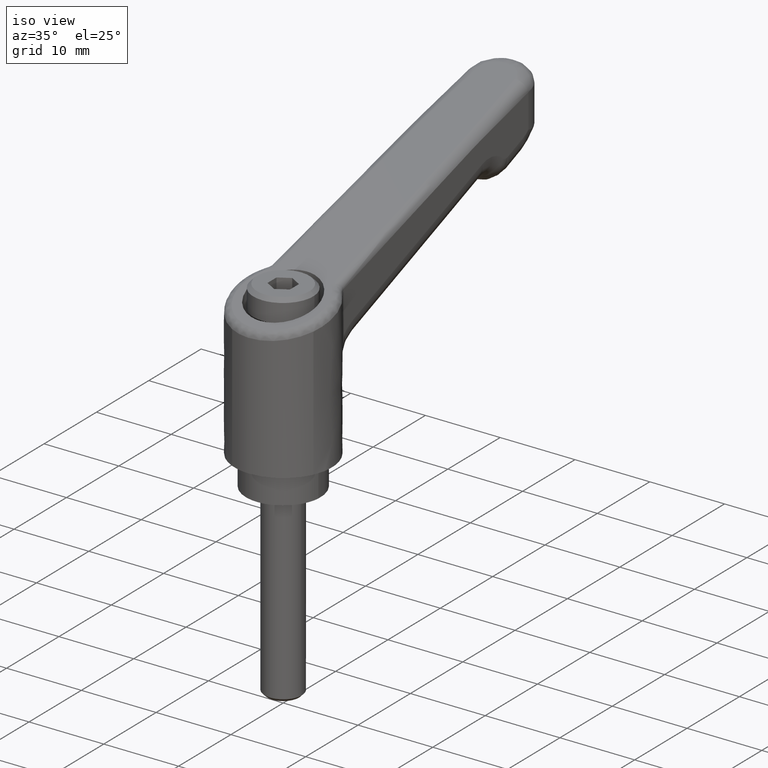
[diagram: clean part render]
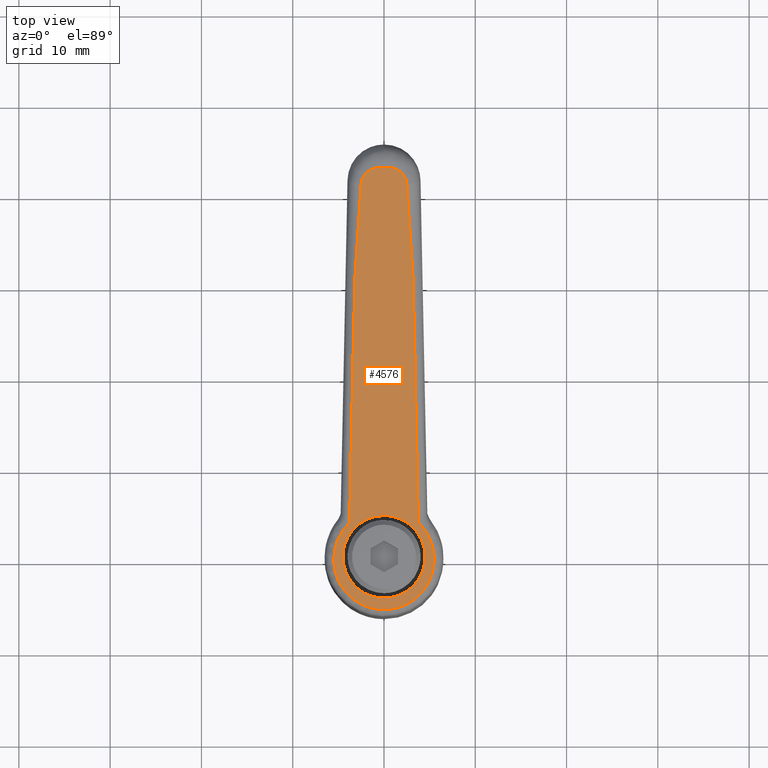
[diagram: tour spotlight — one face highlighted and labeled with its STEP entity id]
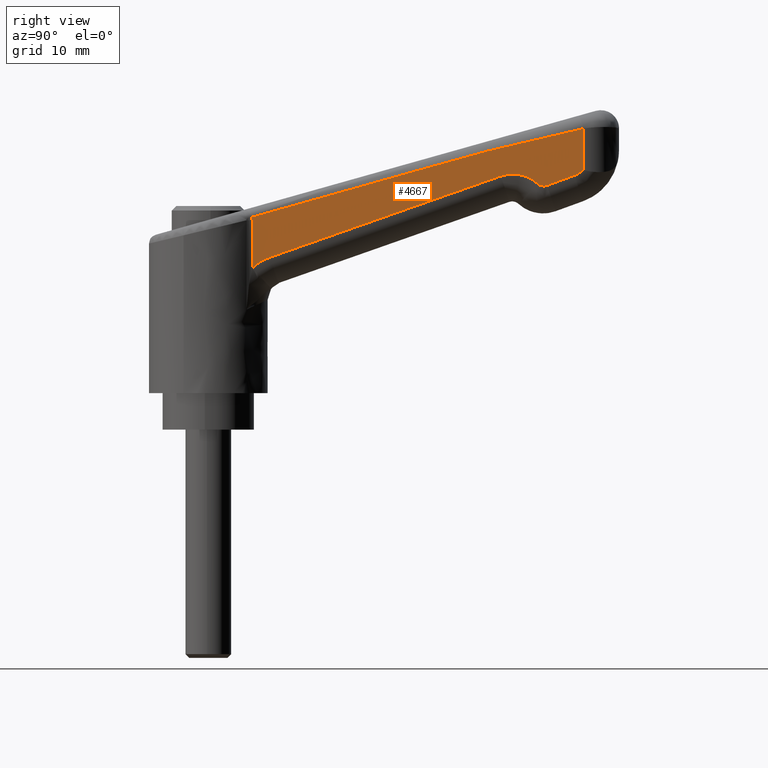
[diagram: tour spotlight — one face highlighted and labeled with its STEP entity id]
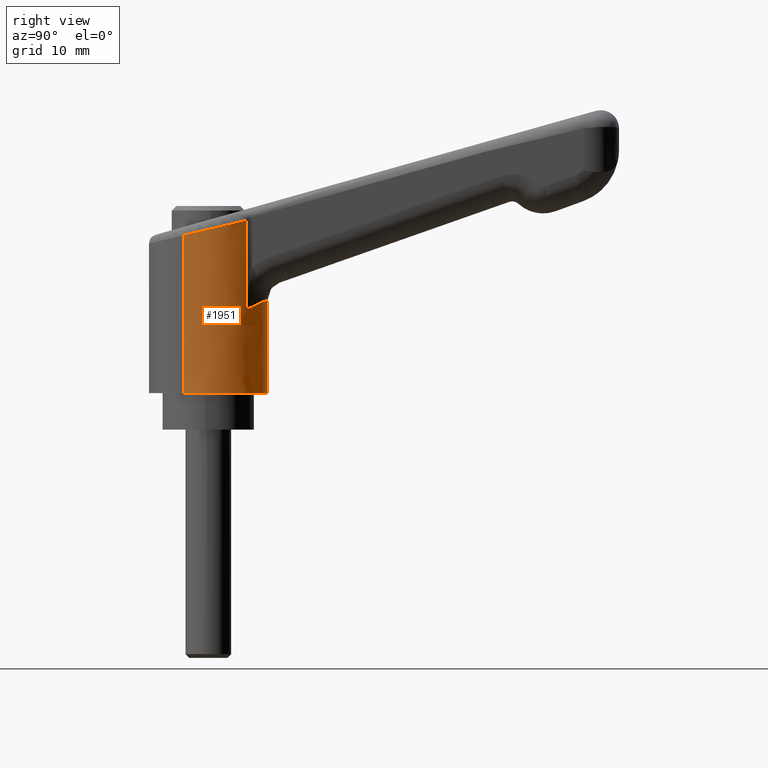
[diagram: tour spotlight — one face highlighted and labeled with its STEP entity id]
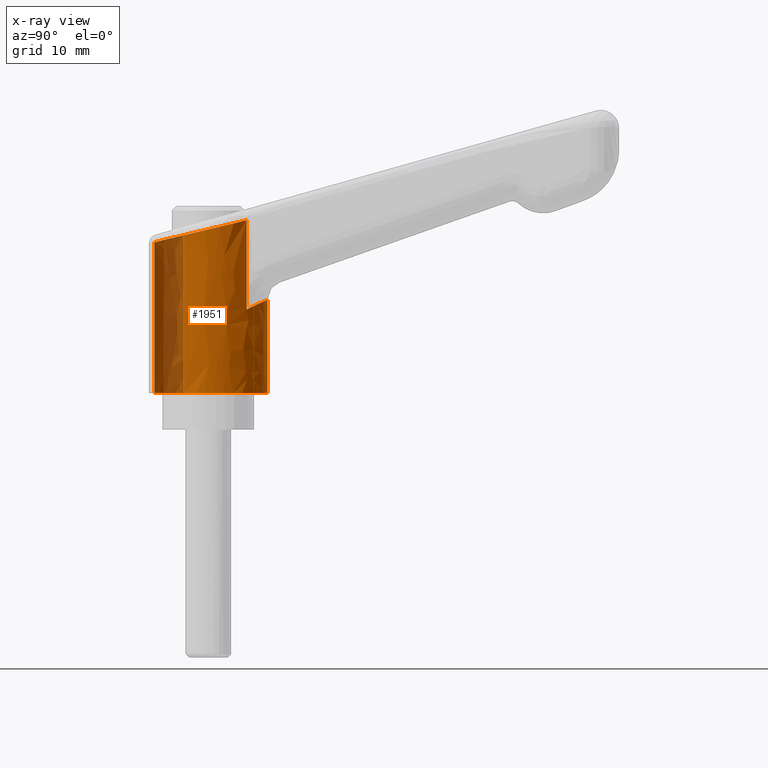
[diagram: x-ray of the same camera — body ghosted, this tour face saturated]
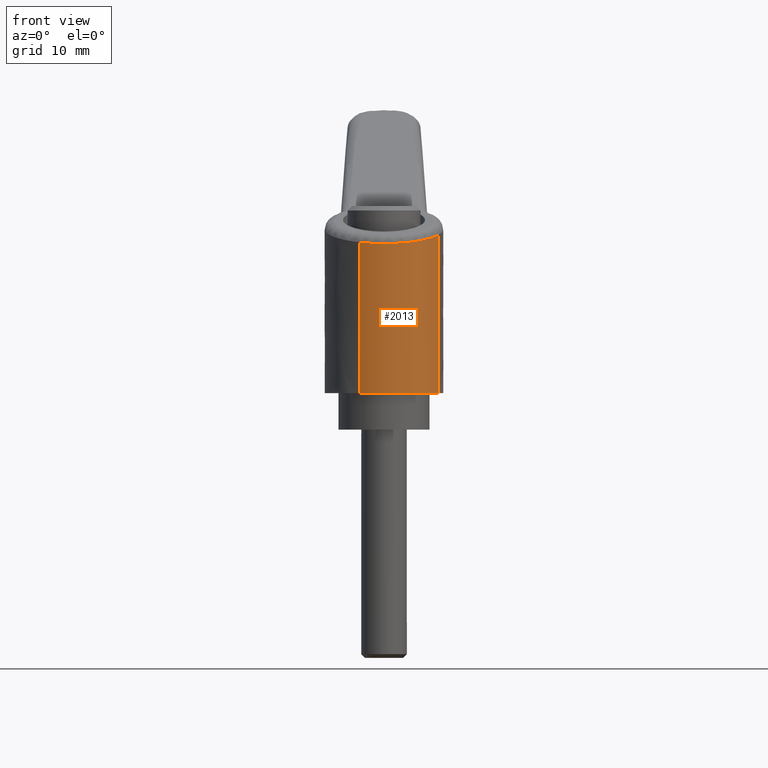
[diagram: tour spotlight — one face highlighted and labeled with its STEP entity id]
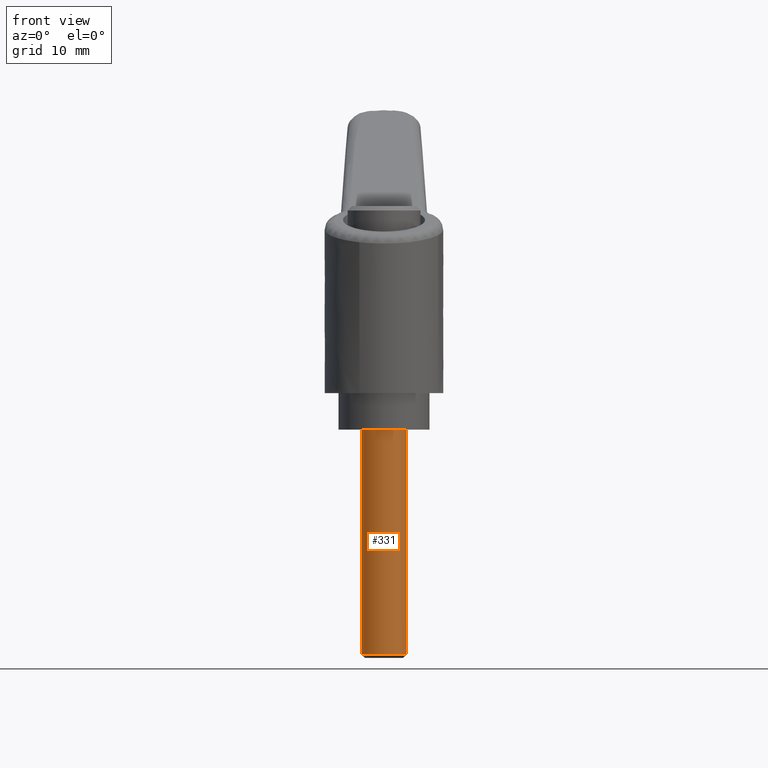
[diagram: tour spotlight — one face highlighted and labeled with its STEP entity id]
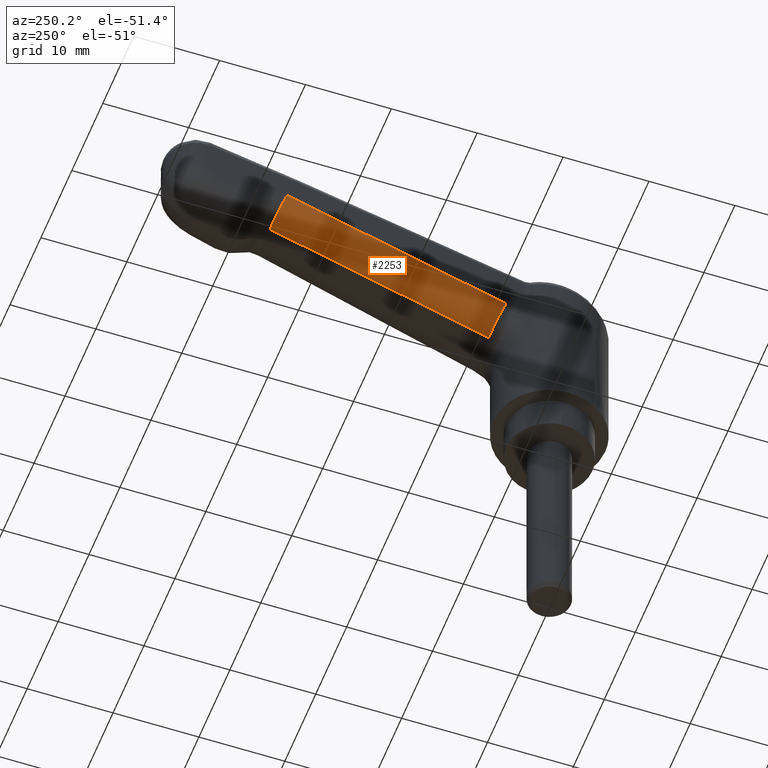
[diagram: tour spotlight — one face highlighted and labeled with its STEP entity id]
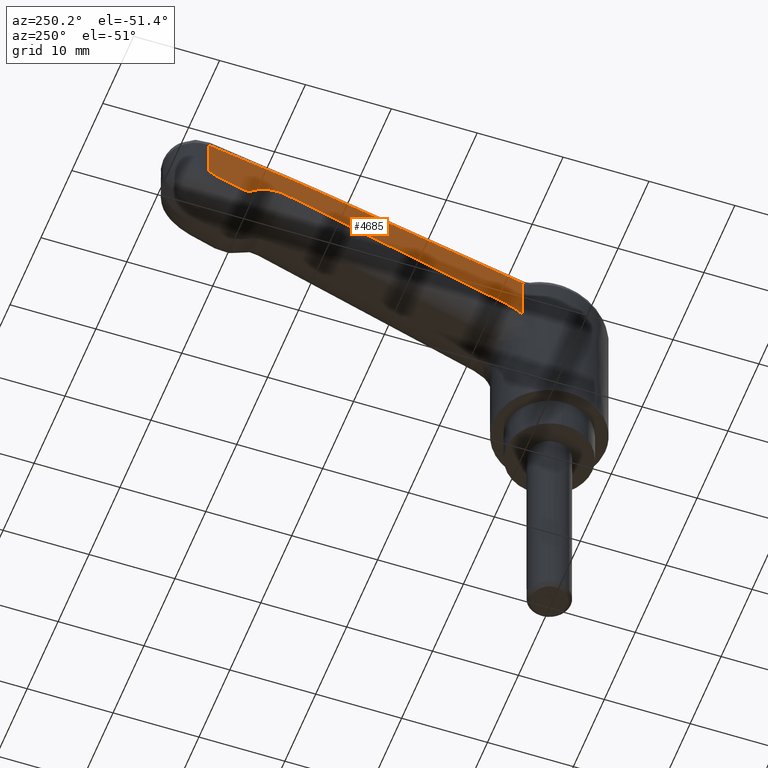
[diagram: tour spotlight — one face highlighted and labeled with its STEP entity id]
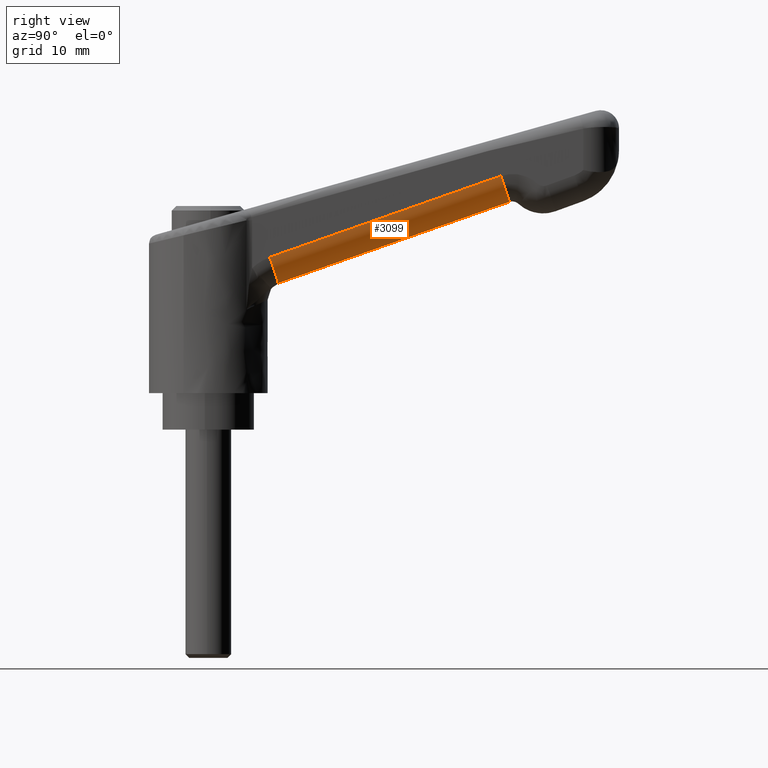
[diagram: tour spotlight — one face highlighted and labeled with its STEP entity id]
A machine part: a face-by-face anatomy tour. The part has 70 B-rep faces; the first image is the clean iso view, then the 8 largest visible faces are spotlighted one at a time (largest first), each with its STEP entity span.

Face 1 — top view, entity #4576. In plain terms, the highlighted face is a freeform B-spline surface patch.
Definition (entity closure, byte-faithful):
#1680=CARTESIAN_POINT('',(0.431305886409119,4.479282892645745,23.092404446520408));
#1681=VERTEX_POINT('',#1680);
#1687=CARTESIAN_POINT('',(-4.499999999999997,0.0,21.703978576884811));
#1688=VERTEX_POINT('',#1687);
#1689=CARTESIAN_POINT('',(0.431305886409119,4.479282892645746,23.092404446520415));
#1690=CARTESIAN_POINT('',(0.216150500251927,4.500000000000001,23.031826719021431));
#1691=CARTESIAN_POINT('',(8.266093E-016,4.500000000000000,22.970968813794251));
#1692=CARTESIAN_POINT('',(-4.499999999999998,4.500000000000001,21.703978576884815));
#1693=CARTESIAN_POINT('',(-4.499999999999997,0.0,21.703978576884811));
#1701=(BOUNDED_CURVE()B_SPLINE_CURVE(2,(#1689,#1690,#1691,#1692,#1693),.UNSPECIFIED.,.F.,.U.)B_SPLINE_CURVE_WITH_KNOTS((3,2,3),(0.733348904760261,0.750000000000000,1.0),.UNSPECIFIED.)CURVE()GEOMETRIC_REPRESENTATION_ITEM()RATIONAL_B_SPLINE_CURVE((0.963582689682235,0.980492028473853,1.0,0.707106781186547,1.0))REPRESENTATION_ITEM(''));
#1702=EDGE_CURVE('',#1681,#1688,#1701,.T.);
#1704=CARTESIAN_POINT('',(0.088775790464412,-4.499124232450957,22.995963938213240));
#1705=VERTEX_POINT('',#1704);
#1706=CARTESIAN_POINT('',(-4.499999999999997,0.0,21.703978576884811));
#1707=CARTESIAN_POINT('',(-4.499999999999998,-4.500000000000001,21.703978576884815));
#1708=CARTESIAN_POINT('',(-2.755364E-016,-4.500000000000000,22.970968813794251));
#1709=CARTESIAN_POINT('',(0.044392214980623,-4.500000000000000,22.983467592233193));
#1710=CARTESIAN_POINT('',(0.088775790464412,-4.499124232450957,22.995963938213244));
#1718=(BOUNDED_CURVE()B_SPLINE_CURVE(2,(#1706,#1707,#1708,#1709,#1710),.UNSPECIFIED.,.F.,.U.)B_SPLINE_CURVE_WITH_KNOTS((3,2,3),(0.0,0.250000000000000,0.253473588062225),.UNSPECIFIED.)CURVE()GEOMETRIC_REPRESENTATION_ITEM()RATIONAL_B_SPLINE_CURVE((1.0,0.707106781186547,1.0,0.995930438446492,0.991973964736430))REPRESENTATION_ITEM(''));
#1719=EDGE_CURVE('',#1688,#1705,#1718,.T.);
#1763=CARTESIAN_POINT('',(4.499999999999997,-5.510729E-016,24.237959050703690));
#1764=VERTEX_POINT('',#1763);
#1765=CARTESIAN_POINT('',(0.088775790464412,-4.499124232450957,22.995963938213240));
#1766=CARTESIAN_POINT('',(4.499999999999998,-4.412082866987462,24.237959050703697));
#1767=CARTESIAN_POINT('',(4.499999999999997,-5.510729E-016,24.237959050703690));
#1775=(BOUNDED_CURVE()B_SPLINE_CURVE(2,(#1765,#1766,#1767),.UNSPECIFIED.,.F.,.U.)B_SPLINE_CURVE_WITH_KNOTS((3,3),(0.253473588062225,0.500000000000000),.UNSPECIFIED.)CURVE()GEOMETRIC_REPRESENTATION_ITEM()RATIONAL_B_SPLINE_CURVE((0.991973964736430,0.711176342740055,1.0))REPRESENTATION_ITEM(''));
#1776=EDGE_CURVE('',#1705,#1764,#1775,.T.);
#1778=CARTESIAN_POINT('',(4.499999999999997,-5.510729E-016,24.237959050703690));
#1779=CARTESIAN_POINT('',(4.499999999999997,4.087512208916254,24.237959050703690));
#1780=CARTESIAN_POINT('',(0.431305886409119,4.479282892645745,23.092404446520412));
#1788=(BOUNDED_CURVE()B_SPLINE_CURVE(2,(#1778,#1779,#1780),.UNSPECIFIED.,.F.,.U.)B_SPLINE_CURVE_WITH_KNOTS((3,3),(0.500000000000000,0.733348904760260),.UNSPECIFIED.)CURVE()GEOMETRIC_REPRESENTATION_ITEM()RATIONAL_B_SPLINE_CURVE((1.0,0.726614752712695,0.963582689682233))REPRESENTATION_ITEM(''));
#1789=EDGE_CURVE('',#1764,#1681,#1788,.T.);
#3511=CARTESIAN_POINT('',(3.741556348912950,3.758484842251940,24.024416672665250));
#3512=VERTEX_POINT('',#3511);
#3774=CARTESIAN_POINT('',(3.741556339639425,-3.758484852029455,24.024416670054251));
#3775=VERTEX_POINT('',#3774);
#4077=CARTESIAN_POINT('',(42.457967617834562,-0.000015641485440,34.925153358419493));
#4078=VERTEX_POINT('',#4077);
#4116=CARTESIAN_POINT('',(40.644689856448700,2.499459725776835,34.414618864979353));
#4117=VERTEX_POINT('',#4116);
#4131=CARTESIAN_POINT('',(42.457967617834562,-0.000015641485440,34.925153358419493));
#4132=CARTESIAN_POINT('',(42.458038539995997,0.559193268184210,34.925173326794223));
#4133=CARTESIAN_POINT('',(42.444930249225763,0.678562668186222,34.921482643143442));
#4134=CARTESIAN_POINT('',(42.394300991168294,1.139613179104271,34.907227804107720));
#4135=CARTESIAN_POINT('',(42.143265098182333,1.559859147453269,34.836547798435042));
#4136=CARTESIAN_POINT('',(41.897635343854994,1.971054983773257,34.767389909406774));
#4137=CARTESIAN_POINT('',(41.546048833033318,2.206863261596248,34.668399536820083));
#4138=CARTESIAN_POINT('',(41.124782138436608,2.489405881122231,34.549790472555827));
#4139=CARTESIAN_POINT('',(40.644689856448700,2.499459725776835,34.414618864979353));
#4140=B_SPLINE_CURVE_WITH_KNOTS('',2,(#4131,#4132,#4133,#4134,#4135,#4136,#4137,#4138,#4139),.UNSPECIFIED.,.F.,.U.,(3,2,2,2,3),(0.0,0.285714285714285,0.571428571428571,0.785714285714286,1.0),.UNSPECIFIED.);
#4141=EDGE_CURVE('',#4078,#4117,#4140,.T.);
#4198=CARTESIAN_POINT('',(40.644689856448700,2.499459725776835,34.414618864979353));
#4199=CARTESIAN_POINT('',(38.594148231963587,2.541475235695460,33.837281927512862));
#4200=CARTESIAN_POINT('',(36.547423999486000,2.784565128869835,33.261019789691737));
#4201=CARTESIAN_POINT('',(34.498791071004653,2.927117830416335,32.684220252047950));
#4202=CARTESIAN_POINT('',(32.450158142523300,3.069670531962835,32.107420714404149));
#4203=CARTESIAN_POINT('',(30.401525214041900,3.212223233509335,31.530621176760349));
#4204=CARTESIAN_POINT('',(28.350983589556751,3.254238743427960,30.953284239293900));
#4205=CARTESIAN_POINT('',(20.147841179105150,3.422320779507944,28.643661717956132));
#4206=CARTESIAN_POINT('',(11.944698768653540,3.590402815587928,26.334039196618360));
#4207=CARTESIAN_POINT('',(3.741556348912950,3.758484842251940,24.024416672665250));
#4208=B_SPLINE_CURVE_WITH_KNOTS('',3,(#4198,#4199,#4200,#4201,#4202,#4203,#4204,#4205,#4206,#4207),.UNSPECIFIED.,.F.,.U.,(4,3,3,4),(0.0,0.055555555555555,0.111111111111111,0.333359773841089),.UNSPECIFIED.);
#4209=EDGE_CURVE('',#4117,#3512,#4208,.T.);
#4293=CARTESIAN_POINT('',(40.644689856570999,-2.499459725774400,34.414618865013750));
#4294=VERTEX_POINT('',#4293);
#4330=CARTESIAN_POINT('',(40.644689856570999,-2.499459725774400,34.414618865013750));
#4331=CARTESIAN_POINT('',(41.292010561922091,-2.485903870531714,34.596874201420242));
#4332=CARTESIAN_POINT('',(41.786178508728149,-2.013602694383776,34.736008860086201));
#4333=CARTESIAN_POINT('',(42.183089578819121,-1.634254809841695,34.847760515803209));
#4334=CARTESIAN_POINT('',(42.355579730826271,-1.101848444359677,34.896325702149007));
#4335=CARTESIAN_POINT('',(42.444842058775123,-0.826332242161665,34.921457812823448));
#4336=CARTESIAN_POINT('',(42.458782854430673,-0.489465939499723,34.925382891043533));
#4337=CARTESIAN_POINT('',(42.468911286120630,-0.244721850320762,34.928234585280507));
#4338=CARTESIAN_POINT('',(42.457967617834562,-0.000015641485440,34.925153358419493));
#4339=B_SPLINE_CURVE_WITH_KNOTS('',2,(#4330,#4331,#4332,#4333,#4334,#4335,#4336,#4337,#4338),.UNSPECIFIED.,.F.,.U.,(3,2,2,2,3),(0.0,0.285714285714285,0.571428571428571,0.785714285714286,1.0),.UNSPECIFIED.);
#4340=EDGE_CURVE('',#4294,#4078,#4339,.T.);
#4450=CARTESIAN_POINT('',(3.741556348912950,3.758484842251940,24.024416672665250));
#4451=CARTESIAN_POINT('',(2.613139403515386,4.959543020966351,23.706707060891489));
#4452=CARTESIAN_POINT('',(1.032099445580706,5.341404178719200,23.261559907365498));
#4453=CARTESIAN_POINT('',(-0.624181604022181,5.741437964070228,22.795228369715510));
#4454=CARTESIAN_POINT('',(-2.192471926375449,5.152285785134270,22.353670919257478));
#4455=CARTESIAN_POINT('',(-3.810883881900226,4.544304650248243,21.898001553269161));
#4456=CARTESIAN_POINT('',(-4.783181073866730,3.144328942083274,21.624247986692271));
#4457=CARTESIAN_POINT('',(-5.260095932126037,2.457636414384234,21.489970993525240));
#4458=CARTESIAN_POINT('',(-5.515229278830568,1.647916624146206,21.418137335884211));
#4459=CARTESIAN_POINT('',(-5.770869703846800,0.836587513332265,21.346160908627549));
#4460=CARTESIAN_POINT('',(-5.771016191066890,7.221335E-009,21.346119664654729));
#4461=CARTESIAN_POINT('',(-5.771162351260350,-0.834719852034760,21.346078512757369));
#4462=CARTESIAN_POINT('',(-5.515229283165072,-1.647916610380662,21.418137334663822));
#4463=CARTESIAN_POINT('',(-5.260924864110520,-2.455938530906754,21.489737604918268));
#4464=CARTESIAN_POINT('',(-4.783181082079061,-3.144328930253737,21.624247984380059));
#4465=CARTESIAN_POINT('',(-3.812428997375039,-4.543104676564713,21.897566520775499));
#4466=CARTESIAN_POINT('',(-2.192471939731651,-5.152285780113730,22.353670915496991));
#4467=CARTESIAN_POINT('',(-0.626072853114904,-5.741326532570756,22.794695882129719));
#4468=CARTESIAN_POINT('',(1.032099432001138,-5.341404181994691,23.261559903542128));
#4469=CARTESIAN_POINT('',(2.612481245364900,-4.960243541884735,23.706521754235709));
#4470=CARTESIAN_POINT('',(3.741556339639425,-3.758484852029455,24.024416670054251));
#4471=B_SPLINE_CURVE_WITH_KNOTS('',2,(#4450,#4451,#4452,#4453,#4454,#4455,#4456,#4457,#4458,#4459,#4460,#4461,#4462,#4463,#4464,#4465,#4466,#4467,#4468,#4469,#4470),.UNSPECIFIED.,.F.,.U.,(3,2,2,2,2,2,2,2,2,2,3),(0.0,0.125000000000000,0.250000000000000,0.375000000000000,0.437500000000000,0.500000000000000,0.562500000000000,0.625000000000000,0.750000000000000,0.875000000000000,1.0),.UNSPECIFIED.);
#4472=EDGE_CURVE('',#3512,#3775,#4471,.T.);
#4515=CARTESIAN_POINT('',(3.741556339639425,-3.758484852029455,24.024416670054251));
#4516=CARTESIAN_POINT('',(11.944698756317880,-3.590402815840754,26.334039193145220));
#4517=CARTESIAN_POINT('',(20.147841172978069,-3.422320779633557,28.643661716231030));
#4518=CARTESIAN_POINT('',(28.350983589638250,-3.254238743426360,30.953284239316851));
#4519=CARTESIAN_POINT('',(30.401525214130199,-3.212223233507595,31.530621176785210));
#4520=CARTESIAN_POINT('',(32.450158142618363,-3.069670531960955,32.107420714430901));
#4521=CARTESIAN_POINT('',(34.498791071106552,-2.927117830414315,32.684220252076649));
#4522=CARTESIAN_POINT('',(36.547423999594699,-2.784565128867675,33.261019789722347));
#4523=CARTESIAN_POINT('',(38.594148232079100,-2.541475235693165,33.837281927545412));
#4524=CARTESIAN_POINT('',(40.644689856570999,-2.499459725774400,34.414618865013750));
#4525=B_SPLINE_CURVE_WITH_KNOTS('',3,(#4515,#4516,#4517,#4518,#4519,#4520,#4521,#4522,#4523,#4524),.UNSPECIFIED.,.F.,.U.,(4,3,3,4),(0.666640225991438,0.888888888888889,0.944444444444445,1.0),.UNSPECIFIED.);
#4526=EDGE_CURVE('',#3775,#4294,#4525,.T.);
#4558=CARTESIAN_POINT('',(44.872938673534591,-6.049746709718774,35.605096636195263));
#4559=CARTESIAN_POINT('',(-8.180337411932330,-6.049746709718774,20.667767117006900));
#4560=CARTESIAN_POINT('',(44.872938673534591,6.049827016849070,35.605096636195263));
#4561=CARTESIAN_POINT('',(-8.180337411932330,6.049827016849070,20.667767117006900));
#4562=B_SPLINE_SURFACE_WITH_KNOTS('',1,1,((#4558,#4560),(#4559,#4561)),.UNSPECIFIED.,.F.,.F.,.U.,(2,2),(2,2),(0.0,55.116004178147683),(0.0,12.099573726567840),.UNSPECIFIED.);
#4563=ORIENTED_EDGE('',*,*,#4340,.T.);
#4564=ORIENTED_EDGE('',*,*,#4141,.T.);
#4565=ORIENTED_EDGE('',*,*,#4209,.T.);
#4566=ORIENTED_EDGE('',*,*,#4472,.T.);
#4567=ORIENTED_EDGE('',*,*,#4526,.T.);
#4568=EDGE_LOOP('',(#4563,#4564,#4565,#4566,#4567));
#4569=FACE_OUTER_BOUND('',#4568,.T.);
#4570=ORIENTED_EDGE('',*,*,#1789,.F.);
#4571=ORIENTED_EDGE('',*,*,#1776,.F.);
#4572=ORIENTED_EDGE('',*,*,#1719,.F.);
#4573=ORIENTED_EDGE('',*,*,#1702,.F.);
#4574=EDGE_LOOP('',(#4570,#4571,#4572,#4573));
#4575=FACE_BOUND('',#4574,.T.);
#4576=ADVANCED_FACE('',(#4569,#4575),#4562,.F.);

Face 2 — right view, entity #4667. In plain terms, the highlighted face is a freeform B-spline surface patch.
Definition (entity closure, byte-faithful):
#2739=CARTESIAN_POINT('',(41.081942629000849,-3.999144946131885,28.444855264286200));
#2740=VERTEX_POINT('',#2739);
#2784=CARTESIAN_POINT('',(40.087518717605093,-4.019520649416160,27.843354198447798));
#2785=VERTEX_POINT('',#2784);
#2786=CARTESIAN_POINT('',(40.087518717605093,-4.019520649416160,27.843354198447798));
#2787=CARTESIAN_POINT('',(40.644109860407163,-4.008116120777592,28.045937282120139));
#2788=CARTESIAN_POINT('',(41.081942629000849,-3.999144946131885,28.444855264286200));
#2796=(BOUNDED_CURVE()B_SPLINE_CURVE(2,(#2786,#2787,#2788),.UNSPECIFIED.,.F.,.U.)CURVE()GEOMETRIC_REPRESENTATION_ITEM()QUASI_UNIFORM_CURVE()RATIONAL_B_SPLINE_CURVE((1.0,0.981061304515185,1.0))REPRESENTATION_ITEM(''));
#2797=EDGE_CURVE('',#2785,#2740,#2796,.T.);
#2844=CARTESIAN_POINT('',(37.084758577035153,-4.081047075879730,26.750438415669301));
#2845=VERTEX_POINT('',#2844);
#2867=CARTESIAN_POINT('',(37.084758577035153,-4.081047075879730,26.750438415669301));
#2868=CARTESIAN_POINT('',(40.087518717605093,-4.019520649416160,27.843354198447798));
#2869=QUASI_UNIFORM_CURVE('',1,(#2867,#2868),.UNSPECIFIED.,.F.,.U.);
#2870=EDGE_CURVE('',#2845,#2785,#2869,.T.);
#2901=CARTESIAN_POINT('',(36.066367309400249,-4.101913869265159,26.953569872643950));
#2902=VERTEX_POINT('',#2901);
#2934=CARTESIAN_POINT('',(36.066367309400249,-4.101913869265159,26.953569872643950));
#2935=CARTESIAN_POINT('',(36.513857694419052,-4.092744810473300,26.542647398137415));
#2936=CARTESIAN_POINT('',(37.084758577035153,-4.081047075879730,26.750438415669301));
#2944=(BOUNDED_CURVE()B_SPLINE_CURVE(2,(#2934,#2935,#2936),.UNSPECIFIED.,.F.,.U.)CURVE()GEOMETRIC_REPRESENTATION_ITEM()QUASI_UNIFORM_CURVE()RATIONAL_B_SPLINE_CURVE((1.0,0.854636887396113,1.0))REPRESENTATION_ITEM(''));
#2945=EDGE_CURVE('',#2902,#2845,#2944,.T.);
#3008=CARTESIAN_POINT('',(32.033624131454147,-4.184544603978870,27.780703603211851));
#3009=VERTEX_POINT('',#3008);
#3039=CARTESIAN_POINT('',(32.033624131454147,-4.184544603978870,27.780703603211851));
#3040=CARTESIAN_POINT('',(34.298195513550105,-4.138143633508657,28.577250635467664));
#3041=CARTESIAN_POINT('',(36.066367309400249,-4.101913869265159,26.953569872643950));
#3049=(BOUNDED_CURVE()B_SPLINE_CURVE(2,(#3039,#3040,#3041),.UNSPECIFIED.,.F.,.U.)CURVE()GEOMETRIC_REPRESENTATION_ITEM()QUASI_UNIFORM_CURVE()RATIONAL_B_SPLINE_CURVE((1.0,0.857438338275757,1.0))REPRESENTATION_ITEM(''));
#3050=EDGE_CURVE('',#3009,#2902,#3049,.T.);
#3069=CARTESIAN_POINT('',(6.729902961068190,-4.703016765244750,18.880297918210101));
#3070=VERTEX_POINT('',#3069);
#3092=CARTESIAN_POINT('',(6.729902961068190,-4.703016765244750,18.880297918210101));
#3093=CARTESIAN_POINT('',(32.033624131454147,-4.184544603978870,27.780703603211851));
#3094=QUASI_UNIFORM_CURVE('',1,(#3092,#3093),.UNSPECIFIED.,.F.,.U.);
#3095=EDGE_CURVE('',#3070,#3009,#3094,.T.);
#3148=CARTESIAN_POINT('',(4.804073263716750,-4.742476933126480,17.698528247989699));
#3149=VERTEX_POINT('',#3148);
#3177=CARTESIAN_POINT('',(4.804073263716750,-4.742476933126480,17.698528247989699));
#3178=CARTESIAN_POINT('',(5.081403213958639,-4.736794454343324,17.961576937454311));
#3179=CARTESIAN_POINT('',(5.380835734717220,-4.730659094838468,18.191763167411199));
#3180=CARTESIAN_POINT('',(5.862690704679486,-4.720785907175248,18.488414421551312));
#3181=CARTESIAN_POINT('',(6.028802928873226,-4.717382274827637,18.579129752211180));
#3182=CARTESIAN_POINT('',(6.286567474621514,-4.712100690343206,18.702421764875520));
#3183=CARTESIAN_POINT('',(6.374012153470831,-4.710308952624912,18.741410024726420));
#3184=CARTESIAN_POINT('',(6.550518317188006,-4.706692348902363,18.814450460097500));
#3185=CARTESIAN_POINT('',(6.639728258086272,-4.704864441040407,18.848579601617089));
#3186=CARTESIAN_POINT('',(6.729902961068190,-4.703016765244750,18.880297918210101));
#3187=B_SPLINE_CURVE_WITH_KNOTS('',3,(#3177,#3178,#3179,#3180,#3181,#3182,#3183,#3184,#3185,#3186),.UNSPECIFIED.,.F.,.U.,(4,2,2,2,4),(0.0,0.500000000000002,0.750000000000002,0.875000000000001,1.0),.UNSPECIFIED.);
#3188=EDGE_CURVE('',#3149,#3070,#3187,.T.);
#3587=CARTESIAN_POINT('',(4.804073263716750,-4.742476933126480,22.927593525127300));
#3588=VERTEX_POINT('',#3587);
#3589=CARTESIAN_POINT('',(4.804073263716750,-4.742476933126480,22.927593525127300));
#3590=CARTESIAN_POINT('',(4.804073263716750,-4.742476933126480,17.698528247989699));
#3591=QUASI_UNIFORM_CURVE('',1,(#3589,#3590),.UNSPECIFIED.,.F.,.U.);
#3592=EDGE_CURVE('',#3588,#3149,#3591,.T.);
#3682=CARTESIAN_POINT('',(4.752992631289641,-4.743523573093560,23.264541861390850));
#3683=VERTEX_POINT('',#3682);
#3712=CARTESIAN_POINT('',(4.752992631289641,-4.743523573093560,23.264541861390850));
#3713=CARTESIAN_POINT('',(4.769240970200588,-4.743190645326323,23.209456991446341));
#3714=CARTESIAN_POINT('',(4.781527066321563,-4.742938903743871,23.153822376348110));
#3715=CARTESIAN_POINT('',(4.798488953245681,-4.742591355408459,23.041497247084230));
#3716=CARTESIAN_POINT('',(4.803021990694848,-4.742498473665596,22.984786926468331));
#3717=CARTESIAN_POINT('',(4.804073263716750,-4.742476933126480,22.927593525127300));
#3718=B_SPLINE_CURVE_WITH_KNOTS('',3,(#3712,#3713,#3714,#3715,#3716,#3717),.UNSPECIFIED.,.F.,.U.,(4,2,4),(0.0,0.500000000000000,1.0),.UNSPECIFIED.);
#3719=EDGE_CURVE('',#3683,#3588,#3718,.T.);
#4295=CARTESIAN_POINT('',(41.081942629000849,-3.999144946131885,32.970756681699797));
#4296=VERTEX_POINT('',#4295);
#4529=CARTESIAN_POINT('',(41.081942629000800,-3.999144946131865,32.970756681699797));
#4530=CARTESIAN_POINT('',(39.031401004508901,-4.041160456050630,32.393419744231451));
#4531=CARTESIAN_POINT('',(36.926376402367197,-4.084292319844150,32.009672564183603));
#4532=CARTESIAN_POINT('',(34.848593289050349,-4.126866006700290,31.529130505425499));
#4533=CARTESIAN_POINT('',(32.770810175733551,-4.169439693556431,31.048588446667349));
#4534=CARTESIAN_POINT('',(30.693027062416750,-4.212013380412575,30.568046387909249));
#4535=CARTESIAN_POINT('',(28.642485437924801,-4.254028890331335,29.990709450440850));
#4536=CARTESIAN_POINT('',(20.679321169046421,-4.417193784585410,27.748653587424180));
#4537=CARTESIAN_POINT('',(12.716156900168039,-4.580358678839486,25.506597724407520));
#4538=CARTESIAN_POINT('',(4.752992631289661,-4.743523573093562,23.264541861390850));
#4539=B_SPLINE_CURVE_WITH_KNOTS('',3,(#4529,#4530,#4531,#4532,#4533,#4534,#4535,#4536,#4537,#4538),.UNSPECIFIED.,.F.,.U.,(4,3,3,4),(0.673141981021412,0.728697536576967,0.784253092132523,1.000000000000000),.UNSPECIFIED.);
#4540=EDGE_CURVE('',#4296,#3683,#4539,.T.);
#4609=CARTESIAN_POINT('',(41.081942629000849,-3.999144946131885,28.444855264286200));
#4610=CARTESIAN_POINT('',(41.081942629000849,-3.999144946131885,32.970756681699797));
#4611=QUASI_UNIFORM_CURVE('',1,(#4609,#4610),.UNSPECIFIED.,.F.,.U.);
#4612=EDGE_CURVE('',#2740,#4296,#4611,.T.);
#4650=CARTESIAN_POINT('',(2.938361649316525,-4.780705284067572,33.733604318998317));
#4651=CARTESIAN_POINT('',(42.896574585392337,-3.961963215192115,33.733604318998317));
#4652=CARTESIAN_POINT('',(2.938361649316525,-4.780705284067572,16.935680064513729));
#4653=CARTESIAN_POINT('',(42.896574585392337,-3.961963215192115,16.935680064513729));
#4654=B_SPLINE_SURFACE_WITH_KNOTS('',1,1,((#4650,#4652),(#4651,#4653)),.UNSPECIFIED.,.F.,.F.,.U.,(2,2),(2,2),(0.0,39.966600050793957),(0.0,16.797924254484592),.UNSPECIFIED.);
#4655=ORIENTED_EDGE('',*,*,#2870,.T.);
#4656=ORIENTED_EDGE('',*,*,#2797,.T.);
#4657=ORIENTED_EDGE('',*,*,#4612,.T.);
#4658=ORIENTED_EDGE('',*,*,#4540,.T.);
#4659=ORIENTED_EDGE('',*,*,#3719,.T.);
#4660=ORIENTED_EDGE('',*,*,#3592,.T.);
#4661=ORIENTED_EDGE('',*,*,#3188,.T.);
#4662=ORIENTED_EDGE('',*,*,#3095,.T.);
#4663=ORIENTED_EDGE('',*,*,#3050,.T.);
#4664=ORIENTED_EDGE('',*,*,#2945,.T.);
#4665=EDGE_LOOP('',(#4655,#4656,#4657,#4658,#4659,#4660,#4661,#4662,#4663,#4664));
#4666=FACE_OUTER_BOUND('',#4665,.T.);
#4667=ADVANCED_FACE('',(#4666),#4654,.F.);

Face 3 — right view, entity #1951. An x-ray twin of the same camera follows (body ghosted, this face saturated) — the face is partly hidden behind the body. In plain terms, the highlighted face is a freeform B-spline surface patch.
Definition (entity closure, byte-faithful):
#1808=CARTESIAN_POINT('',(-5.914748260697529,2.695506077265552,23.400783769491071));
#1809=CARTESIAN_POINT('',(-3.219242183431977,8.610254337963081,23.400783769491078));
#1810=CARTESIAN_POINT('',(2.695506077265552,5.914748260697529,23.400783769491071));
#1811=CARTESIAN_POINT('',(8.610254337963081,3.219242183431977,23.400783769491078));
#1812=CARTESIAN_POINT('',(5.914748260697529,-2.695506077265552,23.400783769491071));
#1813=CARTESIAN_POINT('',(3.219242183431977,-8.610254337963081,23.400783769491078));
#1814=CARTESIAN_POINT('',(-2.695506077265552,-5.914748260697529,23.400783769491071));
#1815=CARTESIAN_POINT('',(-5.914748260697529,2.695506077265552,3.514980405762724));
#1816=CARTESIAN_POINT('',(-3.219242183431977,8.610254337963081,3.514980405762724));
#1817=CARTESIAN_POINT('',(2.695506077265552,5.914748260697529,3.514980405762724));
#1818=CARTESIAN_POINT('',(8.610254337963081,3.219242183431977,3.514980405762724));
#1819=CARTESIAN_POINT('',(5.914748260697529,-2.695506077265552,3.514980405762724));
#1820=CARTESIAN_POINT('',(3.219242183431977,-8.610254337963081,3.514980405762724));
#1821=CARTESIAN_POINT('',(-2.695506077265552,-5.914748260697529,3.514980405762724));
#1829=(BOUNDED_SURFACE()B_SPLINE_SURFACE(2,1,((#1808,#1815),(#1809,#1816),(#1810,#1817),(#1811,#1818),(#1812,#1819),(#1813,#1820),(#1814,#1821)),.UNSPECIFIED.,.F.,.F.,.U.)B_SPLINE_SURFACE_WITH_KNOTS((3,2,2,3),(2,2),(0.0,10.769552621700470,21.539105243400940,32.308657865101402),(0.0,19.885803363728350),.UNSPECIFIED.)GEOMETRIC_REPRESENTATION_ITEM()RATIONAL_B_SPLINE_SURFACE(((1.0,1.0),(0.707106781186548,0.707106781186548),(1.0,1.0),(0.707106781186548,0.707106781186548),(1.0,1.0),(0.707106781186548,0.707106781186548),(1.0,1.0)))REPRESENTATION_ITEM('')SURFACE());
#1830=CARTESIAN_POINT('',(-5.914549222627727,2.695415741930014,20.523474417255041));
#1831=VERTEX_POINT('',#1830);
#1832=CARTESIAN_POINT('',(4.181284398144875,4.976631469360600,22.927593921454701));
#1833=VERTEX_POINT('',#1832);
#1834=CARTESIAN_POINT('',(-5.914549222627727,2.695415741930014,20.523474417255041));
#1835=CARTESIAN_POINT('',(-5.767468683425296,3.018049889160967,20.558274624020420));
#1836=CARTESIAN_POINT('',(-5.301182122846485,3.853651200465881,20.668790276777170));
#1837=CARTESIAN_POINT('',(-4.206732573524401,5.079374765676533,20.933542399933199));
#1838=CARTESIAN_POINT('',(-2.814015692495249,5.926542062287007,21.256799776652048));
#1839=CARTESIAN_POINT('',(-0.987578070325490,6.523198876577488,21.711272153788720));
#1840=CARTESIAN_POINT('',(0.518911333204596,6.562514694377235,22.054979795739850));
#1841=CARTESIAN_POINT('',(1.794250749983869,6.257448991040055,22.359251408766799));
#1842=CARTESIAN_POINT('',(2.343493158666598,6.072421492260547,22.489194389301229));
#1843=CARTESIAN_POINT('',(2.848927942122098,5.851381398022012,22.609175225552999));
#1844=CARTESIAN_POINT('',(3.310269148965460,5.602640603026340,22.719055679617352));
#1845=CARTESIAN_POINT('',(3.726997567116454,5.332975126579158,22.818719346735140));
#1846=CARTESIAN_POINT('',(4.011130279169203,5.119872772664811,22.886882593787369));
#1847=CARTESIAN_POINT('',(4.156138780257463,4.998073741354149,22.921579445916180));
#1848=CARTESIAN_POINT('',(4.181284398144875,4.976631469360600,22.927593921454701));
#1849=B_SPLINE_CURVE_WITH_KNOTS('',3,(#1834,#1835,#1836,#1837,#1838,#1839,#1840,#1841,#1842,#1843,#1844,#1845,#1846,#1847,#1848),.UNSPECIFIED.,.F.,.U.,(4,1,1,1,1,1,1,1,1,1,1,1,4),(0.590929797457907,0.625689573868113,0.684593177289269,0.752063985464612,0.785550837866162,0.877717810244562,0.898032705466529,0.917397459694434,0.935812799731019,0.953279587977761,0.969798852578575,0.985371826641243,0.988662854138937),.UNSPECIFIED.);
#1850=EDGE_CURVE('',#1831,#1833,#1849,.T.);
#1851=ORIENTED_EDGE('',*,*,#1850,.T.);
#1852=CARTESIAN_POINT('',(4.181284398144875,4.976631469360600,13.157700573101801));
#1853=VERTEX_POINT('',#1852);
#1854=CARTESIAN_POINT('',(4.181284398144875,4.976631469360600,22.927593921454701));
#1855=CARTESIAN_POINT('',(4.181284398144875,4.976631469360600,13.157700573101801));
#1856=QUASI_UNIFORM_CURVE('',1,(#1854,#1855),.UNSPECIFIED.,.F.,.U.);
#1857=EDGE_CURVE('',#1833,#1853,#1856,.T.);
#1858=ORIENTED_EDGE('',*,*,#1857,.T.);
#1859=CARTESIAN_POINT('',(4.181284398144875,-4.976631469360600,13.157700573101801));
#1860=VERTEX_POINT('',#1859);
#1861=CARTESIAN_POINT('',(4.181284398144868,4.976631469360603,13.157700573101810));
#1862=CARTESIAN_POINT('',(6.499999999999996,3.028484529113573,14.224243801016479));
#1863=CARTESIAN_POINT('',(6.499999999999996,7.959941E-016,14.224243801016479));
#1864=CARTESIAN_POINT('',(6.499999999999996,-3.028484529113571,14.224243801016479));
#1865=CARTESIAN_POINT('',(4.181284398144872,-4.976631469360600,13.157700573101820));
#1873=(BOUNDED_CURVE()B_SPLINE_CURVE(2,(#1861,#1862,#1863,#1864,#1865),.UNSPECIFIED.,.F.,.U.)B_SPLINE_CURVE_WITH_KNOTS((3,2,3),(0.0,0.500000000000000,1.0),.UNSPECIFIED.)CURVE()GEOMETRIC_REPRESENTATION_ITEM()RATIONAL_B_SPLINE_CURVE((1.0,0.906442089377892,1.0,0.906442089377892,1.0))REPRESENTATION_ITEM(''));
#1874=EDGE_CURVE('',#1853,#1860,#1873,.T.);
#1875=ORIENTED_EDGE('',*,*,#1874,.T.);
#1876=CARTESIAN_POINT('',(4.181284398144875,-4.976631469360600,22.927593525127300));
#1877=VERTEX_POINT('',#1876);
#1878=CARTESIAN_POINT('',(4.181284398144875,-4.976631469360600,13.157700573101801));
#1879=CARTESIAN_POINT('',(4.181284398144875,-4.976631469360600,22.927593525127300));
#1880=QUASI_UNIFORM_CURVE('',1,(#1878,#1879),.UNSPECIFIED.,.F.,.U.);
#1881=EDGE_CURVE('',#1860,#1877,#1880,.T.);
#1882=ORIENTED_EDGE('',*,*,#1881,.T.);
#1883=CARTESIAN_POINT('',(-2.695513222067893,-5.914764970857897,21.289375932146338));
#1884=VERTEX_POINT('',#1883);
#1885=CARTESIAN_POINT('',(4.181284398144875,-4.976631469360600,22.927593525127300));
#1886=CARTESIAN_POINT('',(4.090702165474803,-5.053378183279240,22.905918210103049));
#1887=CARTESIAN_POINT('',(3.899519879876539,-5.204324889392129,22.860066822361599));
#1888=CARTESIAN_POINT('',(3.594591242378110,-5.420201657989427,22.787020845113378));
#1889=CARTESIAN_POINT('',(3.262692341992331,-5.626525204218178,22.707703076304441));
#1890=CARTESIAN_POINT('',(2.904133540324525,-5.820130717636855,22.622291337640430));
#1891=CARTESIAN_POINT('',(2.518726236430529,-5.997385157339010,22.530764670353861));
#1892=CARTESIAN_POINT('',(2.106812031960473,-6.154602996787302,22.433104016941769));
#1893=CARTESIAN_POINT('',(1.668917023192459,-6.287865515124024,22.329410970472850));
#1894=CARTESIAN_POINT('',(0.704775858350752,-6.507636202484164,22.099638519713320));
#1895=CARTESIAN_POINT('',(-0.573018561738040,-6.546654564278001,21.802535892245849));
#1896=CARTESIAN_POINT('',(-1.801453935764700,-6.266555564178022,21.510995956974210));
#1897=CARTESIAN_POINT('',(-2.411559780871937,-6.039669489233360,21.357715439856030));
#1898=CARTESIAN_POINT('',(-2.625726295114919,-5.946577606185152,21.306056125069681));
#1899=CARTESIAN_POINT('',(-2.695513222067893,-5.914764970857897,21.289375932146338));
#1900=B_SPLINE_CURVE_WITH_KNOTS('',3,(#1885,#1886,#1887,#1888,#1889,#1890,#1891,#1892,#1893,#1894,#1895,#1896,#1897,#1898,#1899),.UNSPECIFIED.,.F.,.U.,(4,1,1,1,1,1,1,1,1,1,1,1,4),(0.011339002814821,0.023162408093432,0.035602075254132,0.048614959416363,0.062201629669727,0.076362582625634,0.091098253527881,0.106409025298450,0.122295235960681,0.190526883254455,0.232580987687207,0.248311673399157,0.255996165648131),.UNSPECIFIED.);
#1901=EDGE_CURVE('',#1877,#1884,#1900,.T.);
#1902=ORIENTED_EDGE('',*,*,#1901,.T.);
#1903=CARTESIAN_POINT('',(-2.695505034031616,-5.914748736126404,3.999999999999997));
#1904=VERTEX_POINT('',#1903);
#1905=CARTESIAN_POINT('',(-2.695513222067893,-5.914764970857897,21.289375932146338));
#1906=CARTESIAN_POINT('',(-2.695505034031616,-5.914748736126404,3.999999999999997));
#1907=QUASI_UNIFORM_CURVE('',1,(#1905,#1906),.UNSPECIFIED.,.F.,.U.);
#1908=EDGE_CURVE('',#1884,#1904,#1907,.T.);
#1909=ORIENTED_EDGE('',*,*,#1908,.T.);
#1910=CARTESIAN_POINT('',(6.500000000000000,0.0,4.0));
#1911=VERTEX_POINT('',#1910);
#1912=CARTESIAN_POINT('',(-2.695505034031616,-5.914748736126404,3.999999999999997));
#1913=CARTESIAN_POINT('',(-1.411287742797475,-6.500000000000000,4.000000000000001));
#1914=CARTESIAN_POINT('',(0.0,-6.500000000000000,4.0));
#1915=CARTESIAN_POINT('',(6.500000000000000,-6.500000000000000,4.0));
#1916=CARTESIAN_POINT('',(6.500000000000000,0.0,4.0));
#1924=(BOUNDED_CURVE()B_SPLINE_CURVE(2,(#1912,#1913,#1914,#1915,#1916),.UNSPECIFIED.,.F.,.U.)B_SPLINE_CURVE_WITH_KNOTS((3,2,3),(0.179570143568220,0.250000000000000,0.500000000000000),.UNSPECIFIED.)CURVE()GEOMETRIC_REPRESENTATION_ITEM()RATIONAL_B_SPLINE_CURVE((0.881464010848546,0.917486290596506,1.0,0.707106781186547,1.0))REPRESENTATION_ITEM(''));
#1925=EDGE_CURVE('',#1904,#1911,#1924,.T.);
#1926=ORIENTED_EDGE('',*,*,#1925,.T.);
#1927=CARTESIAN_POINT('',(-5.914751344820068,2.695499309755777,4.000000000000001));
#1928=VERTEX_POINT('',#1927);
#1929=CARTESIAN_POINT('',(6.500000000000000,0.0,4.0));
#1930=CARTESIAN_POINT('',(6.500000000000000,6.500000000000000,4.0));
#1931=CARTESIAN_POINT('',(0.0,6.500000000000000,4.0));
#1932=CARTESIAN_POINT('',(-4.180945748161806,6.500000000000001,4.000000000000000));
#1933=CARTESIAN_POINT('',(-5.914751344820068,2.695499309755777,4.000000000000001));
#1941=(BOUNDED_CURVE()B_SPLINE_CURVE(2,(#1929,#1930,#1931,#1932,#1933),.UNSPECIFIED.,.F.,.U.)B_SPLINE_CURVE_WITH_KNOTS((3,2,3),(0.500000000000000,0.750000000000000,0.929570294372498),.UNSPECIFIED.)CURVE()GEOMETRIC_REPRESENTATION_ITEM()RATIONAL_B_SPLINE_CURVE((1.0,0.707106781186547,1.0,0.789620313911840,0.881464165110436))REPRESENTATION_ITEM(''));
#1942=EDGE_CURVE('',#1911,#1928,#1941,.T.);
#1943=ORIENTED_EDGE('',*,*,#1942,.T.);
#1944=CARTESIAN_POINT('',(-5.914549222627727,2.695415741930014,20.523474417255041));
#1945=CARTESIAN_POINT('',(-5.914751344820068,2.695499309755777,4.000000000000001));
#1946=QUASI_UNIFORM_CURVE('',1,(#1944,#1945),.UNSPECIFIED.,.F.,.U.);
#1947=EDGE_CURVE('',#1831,#1928,#1946,.T.);
#1948=ORIENTED_EDGE('',*,*,#1947,.F.);
#1949=EDGE_LOOP('',(#1851,#1858,#1875,#1882,#1902,#1909,#1926,#1943,#1948));
#1950=FACE_OUTER_BOUND('',#1949,.T.);
#1951=ADVANCED_FACE('',(#1950),#1829,.T.);

Face 4 — front view, entity #2013. In plain terms, the highlighted face is a freeform B-spline surface patch.
Definition (entity closure, byte-faithful):
#1830=CARTESIAN_POINT('',(-5.914549222627727,2.695415741930014,20.523474417255041));
#1831=VERTEX_POINT('',#1830);
#1883=CARTESIAN_POINT('',(-2.695513222067893,-5.914764970857897,21.289375932146338));
#1884=VERTEX_POINT('',#1883);
#1903=CARTESIAN_POINT('',(-2.695505034031616,-5.914748736126404,3.999999999999997));
#1904=VERTEX_POINT('',#1903);
#1905=CARTESIAN_POINT('',(-2.695513222067893,-5.914764970857897,21.289375932146338));
#1906=CARTESIAN_POINT('',(-2.695505034031616,-5.914748736126404,3.999999999999997));
#1907=QUASI_UNIFORM_CURVE('',1,(#1905,#1906),.UNSPECIFIED.,.F.,.U.);
#1908=EDGE_CURVE('',#1884,#1904,#1907,.T.);
#1927=CARTESIAN_POINT('',(-5.914751344820068,2.695499309755777,4.000000000000001));
#1928=VERTEX_POINT('',#1927);
#1944=CARTESIAN_POINT('',(-5.914549222627727,2.695415741930014,20.523474417255041));
#1945=CARTESIAN_POINT('',(-5.914751344820068,2.695499309755777,4.000000000000001));
#1946=QUASI_UNIFORM_CURVE('',1,(#1944,#1945),.UNSPECIFIED.,.F.,.U.);
#1947=EDGE_CURVE('',#1831,#1928,#1946,.T.);
#1952=CARTESIAN_POINT('',(-2.695506077265552,-5.914748260697529,22.152979620635289));
#1953=CARTESIAN_POINT('',(-8.610254337963081,-3.219242183431977,22.152979620635296));
#1954=CARTESIAN_POINT('',(-5.914748260697529,2.695506077265552,22.152979620635289));
#1955=CARTESIAN_POINT('',(-2.695506077265552,-5.914748260697529,3.514980405762724));
#1956=CARTESIAN_POINT('',(-8.610254337963081,-3.219242183431977,3.514980405762724));
#1957=CARTESIAN_POINT('',(-5.914748260697529,2.695506077265552,3.514980405762724));
#1965=(BOUNDED_SURFACE()B_SPLINE_SURFACE(2,1,((#1952,#1955),(#1953,#1956),(#1954,#1957)),.UNSPECIFIED.,.F.,.F.,.U.)B_SPLINE_SURFACE_WITH_KNOTS((3,3),(2,2),(0.0,10.769552621700470),(0.0,18.637999214872568),.UNSPECIFIED.)GEOMETRIC_REPRESENTATION_ITEM()RATIONAL_B_SPLINE_SURFACE(((1.0,1.0),(0.707106781186548,0.707106781186548),(1.0,1.0)))REPRESENTATION_ITEM('')SURFACE());
#1966=CARTESIAN_POINT('',(-2.695513222067893,-5.914764970857897,21.289375932146338));
#1967=CARTESIAN_POINT('',(-2.881030658365713,-5.830196981669886,21.245035264184949));
#1968=CARTESIAN_POINT('',(-3.301118528395700,-5.614414166389211,21.147146363890190));
#1969=CARTESIAN_POINT('',(-3.908233196545616,-5.213518496065293,21.002177818591640));
#1970=CARTESIAN_POINT('',(-4.491701996795476,-4.718036285342000,20.863229889192159));
#1971=CARTESIAN_POINT('',(-4.987744114587986,-4.187768324420973,20.744168989618391));
#1972=CARTESIAN_POINT('',(-5.658428579897180,-3.294356971199553,20.583904423834088));
#1973=CARTESIAN_POINT('',(-6.312353545142353,-1.912611205079461,20.429865529785939));
#1974=CARTESIAN_POINT('',(-6.592020430775749,0.000144897384481,20.360860916078408));
#1975=CARTESIAN_POINT('',(-6.364158127282368,1.557564503429156,20.417237518825459));
#1976=CARTESIAN_POINT('',(-6.037645666409008,2.425372030443642,20.494346660077760));
#1977=CARTESIAN_POINT('',(-5.914549222627727,2.695415741930014,20.523474417255041));
#1978=B_SPLINE_CURVE_WITH_KNOTS('',3,(#1966,#1967,#1968,#1969,#1970,#1971,#1972,#1973,#1974,#1975,#1976,#1977),.UNSPECIFIED.,.F.,.U.,(4,1,1,1,1,1,1,1,1,4),(0.255996165648131,0.276423781504501,0.303149177105800,0.328493664012073,0.352464098916857,0.375068639120434,0.438914925397556,0.500379124790108,0.561836320899287,0.590929797457907),.UNSPECIFIED.);
#1979=EDGE_CURVE('',#1884,#1831,#1978,.T.);
#1980=ORIENTED_EDGE('',*,*,#1979,.T.);
#1981=ORIENTED_EDGE('',*,*,#1947,.T.);
#1982=CARTESIAN_POINT('',(-6.500000000000000,0.0,4.0));
#1983=VERTEX_POINT('',#1982);
#1984=CARTESIAN_POINT('',(-5.914751344820068,2.695499309755777,4.000000000000001));
#1985=CARTESIAN_POINT('',(-6.499999999999999,1.411284449183021,4.000000000000001));
#1986=CARTESIAN_POINT('',(-6.500000000000000,0.0,4.0));
#1994=(BOUNDED_CURVE()B_SPLINE_CURVE(2,(#1984,#1985,#1986),.UNSPECIFIED.,.F.,.U.)B_SPLINE_CURVE_WITH_KNOTS((3,3),(0.929570294372498,1.0),.UNSPECIFIED.)CURVE()GEOMETRIC_REPRESENTATION_ITEM()RATIONAL_B_SPLINE_CURVE((0.881464165110436,0.917486467274708,1.0))REPRESENTATION_ITEM(''));
#1995=EDGE_CURVE('',#1928,#1983,#1994,.T.);
#1996=ORIENTED_EDGE('',*,*,#1995,.T.);
#1997=CARTESIAN_POINT('',(-6.500000000000000,0.0,4.0));
#1998=CARTESIAN_POINT('',(-6.500000000000000,-4.180941301487832,4.0));
#1999=CARTESIAN_POINT('',(-2.695505034031616,-5.914748736126404,3.999999999999997));
#2007=(BOUNDED_CURVE()B_SPLINE_CURVE(2,(#1997,#1998,#1999),.UNSPECIFIED.,.F.,.U.)B_SPLINE_CURVE_WITH_KNOTS((3,3),(0.0,0.179570143568220),.UNSPECIFIED.)CURVE()GEOMETRIC_REPRESENTATION_ITEM()RATIONAL_B_SPLINE_CURVE((1.0,0.789620490590041,0.881464010848546))REPRESENTATION_ITEM(''));
#2008=EDGE_CURVE('',#1983,#1904,#2007,.T.);
#2009=ORIENTED_EDGE('',*,*,#2008,.T.);
#2010=ORIENTED_EDGE('',*,*,#1908,.F.);
#2011=EDGE_LOOP('',(#1980,#1981,#1996,#2009,#2010));
#2012=FACE_OUTER_BOUND('',#2011,.T.);
#2013=ADVANCED_FACE('',(#2012),#1965,.T.);

Face 5 — front view, entity #331. In plain terms, the highlighted face is a freeform B-spline surface patch.
Definition (entity closure, byte-faithful):
#62=CARTESIAN_POINT('',(-0.457809072959342,2.457724730934089,-24.599999999934219));
#63=VERTEX_POINT('',#62);
#64=CARTESIAN_POINT('',(-2.500000000000000,0.0,-24.600000000000001));
#65=VERTEX_POINT('',#64);
#66=CARTESIAN_POINT('',(-0.457809072959342,2.457724730934089,-24.599999999934209));
#67=CARTESIAN_POINT('',(-2.500000000000001,2.077318607884252,-24.600000000000005));
#68=CARTESIAN_POINT('',(-2.500000000000000,0.0,-24.600000000000001));
#76=(BOUNDED_CURVE()B_SPLINE_CURVE(2,(#66,#67,#68),.UNSPECIFIED.,.F.,.U.)B_SPLINE_CURVE_WITH_KNOTS((3,3),(0.281445263785785,0.500000000000000),.UNSPECIFIED.)CURVE()GEOMETRIC_REPRESENTATION_ITEM()RATIONAL_B_SPLINE_CURVE((0.935586817109479,0.743947199293174,1.0))REPRESENTATION_ITEM(''));
#77=EDGE_CURVE('',#63,#65,#76,.T.);
#125=CARTESIAN_POINT('',(-0.152621348980190,-2.495336996045918,-24.600000000000001));
#126=VERTEX_POINT('',#125);
#142=CARTESIAN_POINT('',(-2.500000000000000,0.0,-24.600000000000001));
#143=CARTESIAN_POINT('',(-2.500000000000000,-2.351765166994094,-24.599999999999994));
#144=CARTESIAN_POINT('',(-0.152621348980190,-2.495336996045918,-24.600000000000005));
#152=(BOUNDED_CURVE()B_SPLINE_CURVE(2,(#142,#143,#144),.UNSPECIFIED.,.F.,.U.)B_SPLINE_CURVE_WITH_KNOTS((3,3),(0.500000000000000,0.739332962222185),.UNSPECIFIED.)CURVE()GEOMETRIC_REPRESENTATION_ITEM()RATIONAL_B_SPLINE_CURVE((1.0,0.719603993306343,0.976072041630803))REPRESENTATION_ITEM(''));
#153=EDGE_CURVE('',#65,#126,#152,.T.);
#180=CARTESIAN_POINT('',(0.295085586690003,2.482523815903448,-24.600000000000001));
#181=VERTEX_POINT('',#180);
#182=CARTESIAN_POINT('',(0.295085586690003,2.482523815903447,-24.599999999999998));
#183=CARTESIAN_POINT('',(0.148060299178390,2.500000000000000,-24.600000000000005));
#184=CARTESIAN_POINT('',(0.0,2.500000000000000,-24.600000000000001));
#185=CARTESIAN_POINT('',(-0.230856440377393,2.500000000000000,-24.599999999999998));
#186=CARTESIAN_POINT('',(-0.457809072959342,2.457724730934088,-24.599999999934223));
#194=(BOUNDED_CURVE()B_SPLINE_CURVE(2,(#182,#183,#184,#185,#186),.UNSPECIFIED.,.F.,.U.)B_SPLINE_CURVE_WITH_KNOTS((3,2,3),(0.229562473509094,0.250000000000000,0.281445263785785),.UNSPECIFIED.)CURVE()GEOMETRIC_REPRESENTATION_ITEM()RATIONAL_B_SPLINE_CURVE((0.956026754175048,0.976055948325974,1.0,0.963159581893374,0.935586817109479))REPRESENTATION_ITEM(''));
#195=EDGE_CURVE('',#181,#63,#194,.T.);
#260=CARTESIAN_POINT('',(0.295085586641896,2.482523815909166,-25.215000000000011));
#261=CARTESIAN_POINT('',(0.224036821594944,2.490969038621514,-25.215000000000007));
#262=CARTESIAN_POINT('',(0.152621348837143,2.495336996054667,-25.215000000000011));
#263=CARTESIAN_POINT('',(-2.342715647217524,2.647958344891809,-25.215000000000007));
#264=CARTESIAN_POINT('',(-2.495336996054667,0.152621348837143,-25.215000000000011));
#265=CARTESIAN_POINT('',(-2.647958344891809,-2.342715647217524,-25.215000000000007));
#266=CARTESIAN_POINT('',(-0.152621348837143,-2.495336996054667,-25.215000000000011));
#267=CARTESIAN_POINT('',(0.295085586641896,2.482523815909166,0.630375000000001));
#268=CARTESIAN_POINT('',(0.224036821594944,2.490969038621514,0.630375000000001));
#269=CARTESIAN_POINT('',(0.152621348837143,2.495336996054667,0.630375000000001));
#270=CARTESIAN_POINT('',(-2.342715647217524,2.647958344891809,0.630375000000001));
#271=CARTESIAN_POINT('',(-2.495336996054667,0.152621348837143,0.630375000000001));
#272=CARTESIAN_POINT('',(-2.647958344891809,-2.342715647217524,0.630375000000001));
#273=CARTESIAN_POINT('',(-0.152621348837143,-2.495336996054667,0.630375000000001));
#281=(BOUNDED_SURFACE()B_SPLINE_SURFACE(2,1,((#260,#267),(#261,#268),(#262,#269),(#263,#270),(#264,#271),(#265,#272),(#266,#273)),.UNSPECIFIED.,.F.,.F.,.U.)B_SPLINE_SURFACE_WITH_KNOTS((3,2,2,3),(2,2),(0.0,0.165685424949238,4.307821048680188,8.449956672411137),(0.0,25.845375000000018),.UNSPECIFIED.)GEOMETRIC_REPRESENTATION_ITEM()RATIONAL_B_SPLINE_SURFACE(((0.977505800795127,0.977505800795127),(0.988284271247462,0.988284271247462),(1.0,1.0),(0.707106781186548,0.707106781186548),(1.0,1.0),(0.707106781186548,0.707106781186548),(1.0,1.0)))REPRESENTATION_ITEM('')SURFACE());
#282=ORIENTED_EDGE('',*,*,#195,.T.);
#283=ORIENTED_EDGE('',*,*,#77,.T.);
#284=ORIENTED_EDGE('',*,*,#153,.T.);
#285=CARTESIAN_POINT('',(-0.152621348980190,-2.495336996045918,0.0));
#286=VERTEX_POINT('',#285);
#287=CARTESIAN_POINT('',(-0.152621348980190,-2.495336996045918,-24.600000000000001));
#288=CARTESIAN_POINT('',(-0.152621348980190,-2.495336996045918,0.0));
#289=QUASI_UNIFORM_CURVE('',1,(#287,#288),.UNSPECIFIED.,.F.,.U.);
#290=EDGE_CURVE('',#126,#286,#289,.T.);
#291=ORIENTED_EDGE('',*,*,#290,.T.);
#292=CARTESIAN_POINT('',(-2.500000000000000,0.0,0.0));
#293=VERTEX_POINT('',#292);
#294=CARTESIAN_POINT('',(-2.500000000000000,0.0,0.0));
#295=CARTESIAN_POINT('',(-2.500000000000000,-2.351765166994094,0.0));
#296=CARTESIAN_POINT('',(-0.152621348980190,-2.495336996045918,0.0));
#304=(BOUNDED_CURVE()B_SPLINE_CURVE(2,(#294,#295,#296),.UNSPECIFIED.,.F.,.U.)B_SPLINE_CURVE_WITH_KNOTS((3,3),(0.500000000000000,0.739332962222185),.UNSPECIFIED.)CURVE()GEOMETRIC_REPRESENTATION_ITEM()RATIONAL_B_SPLINE_CURVE((1.0,0.719603993306343,0.976072041630803))REPRESENTATION_ITEM(''));
#305=EDGE_CURVE('',#293,#286,#304,.T.);
#306=ORIENTED_EDGE('',*,*,#305,.F.);
#307=CARTESIAN_POINT('',(0.295085586690003,2.482523815903448,0.0));
#308=VERTEX_POINT('',#307);
#309=CARTESIAN_POINT('',(0.295085586690003,2.482523815903447,0.0));
#310=CARTESIAN_POINT('',(0.148060299178390,2.500000000000000,0.0));
#311=CARTESIAN_POINT('',(0.0,2.500000000000000,0.0));
#312=CARTESIAN_POINT('',(-2.500000000000000,2.500000000000000,0.0));
#313=CARTESIAN_POINT('',(-2.500000000000000,0.0,0.0));
#321=(BOUNDED_CURVE()B_SPLINE_CURVE(2,(#309,#310,#311,#312,#313),.UNSPECIFIED.,.F.,.U.)B_SPLINE_CURVE_WITH_KNOTS((3,2,3),(0.229562473509094,0.250000000000000,0.500000000000000),.UNSPECIFIED.)CURVE()GEOMETRIC_REPRESENTATION_ITEM()RATIONAL_B_SPLINE_CURVE((0.956026754175048,0.976055948325974,1.0,0.707106781186548,1.0))REPRESENTATION_ITEM(''));
#322=EDGE_CURVE('',#308,#293,#321,.T.);
#323=ORIENTED_EDGE('',*,*,#322,.F.);
#324=CARTESIAN_POINT('',(0.295085586690003,2.482523815903448,-24.600000000000001));
#325=CARTESIAN_POINT('',(0.295085586690003,2.482523815903448,0.0));
#326=QUASI_UNIFORM_CURVE('',1,(#324,#325),.UNSPECIFIED.,.F.,.U.);
#327=EDGE_CURVE('',#181,#308,#326,.T.);
#328=ORIENTED_EDGE('',*,*,#327,.F.);
#329=EDGE_LOOP('',(#282,#283,#284,#291,#306,#323,#328));
#330=FACE_OUTER_BOUND('',#329,.T.);
#331=ADVANCED_FACE('',(#330),#281,.T.);

Face 6 — auxiliary view, entity #2253. In plain terms, the highlighted face is a freeform B-spline surface patch.
Definition (entity closure, byte-faithful):
#2164=CARTESIAN_POINT('',(6.729902961068190,4.703016765244761,18.880297918210150));
#2165=VERTEX_POINT('',#2164);
#2166=CARTESIAN_POINT('',(7.663890390378490,1.703646324529980,16.050264270958049));
#2167=VERTEX_POINT('',#2166);
#2168=CARTESIAN_POINT('',(6.729902961068184,4.703016765244756,18.880297918210150));
#2169=CARTESIAN_POINT('',(7.718211638551536,4.682766362841004,16.069371387369920));
#2170=CARTESIAN_POINT('',(7.663890390378490,1.703646324529980,16.050264270958049));
#2178=(BOUNDED_CURVE()B_SPLINE_CURVE(2,(#2168,#2169,#2170),.UNSPECIFIED.,.F.,.U.)CURVE()GEOMETRIC_REPRESENTATION_ITEM()QUASI_UNIFORM_CURVE()RATIONAL_B_SPLINE_CURVE((1.0,0.709505970468123,1.0))REPRESENTATION_ITEM(''));
#2179=EDGE_CURVE('',#2165,#2167,#2178,.T.);
#2209=CARTESIAN_POINT('',(6.071241509071350,4.715484469287285,18.731871132118481));
#2210=CARTESIAN_POINT('',(32.655963563708148,4.170764654857315,28.082859854923399));
#2211=CARTESIAN_POINT('',(7.139661131740358,4.777824294203642,15.698001473038644));
#2212=CARTESIAN_POINT('',(33.724383186377160,4.233104479773678,25.048990195843558));
#2213=CARTESIAN_POINT('',(7.027274817078437,1.565408308394300,15.830382372541949));
#2214=CARTESIAN_POINT('',(33.611996871715242,1.020688493964332,25.181371095346861));
#2222=(BOUNDED_SURFACE()B_SPLINE_SURFACE(1,2,((#2209,#2211,#2213),(#2210,#2212,#2214)),.UNSPECIFIED.,.F.,.F.,.U.)B_SPLINE_SURFACE_WITH_KNOTS((2,2),(3,3),(0.0,28.186613072388631),(0.0,5.217748499531199),.UNSPECIFIED.)GEOMETRIC_REPRESENTATION_ITEM()RATIONAL_B_SPLINE_SURFACE(((1.0,0.681998360062498,1.0),(1.0,0.681998360062498,1.0)))REPRESENTATION_ITEM('')SURFACE());
#2223=CARTESIAN_POINT('',(32.033624131454147,4.184544603978870,27.780703603211851));
#2224=VERTEX_POINT('',#2223);
#2225=CARTESIAN_POINT('',(32.967611560764503,1.185174163263914,24.950669955959750));
#2226=VERTEX_POINT('',#2225);
#2227=CARTESIAN_POINT('',(32.033624131454147,4.184544603978870,27.780703603211851));
#2228=CARTESIAN_POINT('',(33.021932808937500,4.164294201575118,24.969777072371617));
#2229=CARTESIAN_POINT('',(32.967611560764460,1.185174163263934,24.950669955959771));
#2237=(BOUNDED_CURVE()B_SPLINE_CURVE(2,(#2227,#2228,#2229),.UNSPECIFIED.,.F.,.U.)CURVE()GEOMETRIC_REPRESENTATION_ITEM()QUASI_UNIFORM_CURVE()RATIONAL_B_SPLINE_CURVE((1.0,0.709505970468123,1.0))REPRESENTATION_ITEM(''));
#2238=EDGE_CURVE('',#2224,#2226,#2237,.T.);
#2239=ORIENTED_EDGE('',*,*,#2238,.T.);
#2240=CARTESIAN_POINT('',(7.663890390378490,1.703646324529980,16.050264270958049));
#2241=CARTESIAN_POINT('',(32.967611560764503,1.185174163263914,24.950669955959750));
#2242=QUASI_UNIFORM_CURVE('',1,(#2240,#2241),.UNSPECIFIED.,.F.,.U.);
#2243=EDGE_CURVE('',#2167,#2226,#2242,.T.);
#2244=ORIENTED_EDGE('',*,*,#2243,.F.);
#2245=ORIENTED_EDGE('',*,*,#2179,.F.);
#2246=CARTESIAN_POINT('',(32.033624131454147,4.184544603978870,27.780703603211851));
#2247=CARTESIAN_POINT('',(6.729902961068190,4.703016765244761,18.880297918210150));
#2248=QUASI_UNIFORM_CURVE('',1,(#2246,#2247),.UNSPECIFIED.,.F.,.U.);
#2249=EDGE_CURVE('',#2224,#2165,#2248,.T.);
#2250=ORIENTED_EDGE('',*,*,#2249,.F.);
#2251=EDGE_LOOP('',(#2239,#2244,#2245,#2250));
#2252=FACE_OUTER_BOUND('',#2251,.T.);
#2253=ADVANCED_FACE('',(#2252),#2222,.T.);

Face 7 — auxiliary view, entity #4685. In plain terms, the highlighted face is a freeform B-spline surface patch.
Definition (entity closure, byte-faithful):
#2081=CARTESIAN_POINT('',(4.804073263716750,4.742476933126480,17.698528247989699));
#2082=VERTEX_POINT('',#2081);
#2164=CARTESIAN_POINT('',(6.729902961068190,4.703016765244761,18.880297918210150));
#2165=VERTEX_POINT('',#2164);
#2193=CARTESIAN_POINT('',(6.729902961068190,4.703016765244761,18.880297918210150));
#2194=CARTESIAN_POINT('',(6.369126267411332,4.710409064220662,18.753397257488409));
#2195=CARTESIAN_POINT('',(6.028653220946148,4.717385342336639,18.590091423300262));
#2196=CARTESIAN_POINT('',(5.546472659345413,4.727265201358567,18.293979129071399));
#2197=CARTESIAN_POINT('',(5.390542730385567,4.730460198913646,18.186673971210201));
#2198=CARTESIAN_POINT('',(5.163962860078302,4.735102810736097,18.012600133476809));
#2199=CARTESIAN_POINT('',(5.089598469227130,4.736626533914445,17.952322520027121));
#2200=CARTESIAN_POINT('',(4.944392874896860,4.739601790313034,17.828221955772040));
#2201=CARTESIAN_POINT('',(4.873420914076465,4.741056002745587,17.764304802338270));
#2202=CARTESIAN_POINT('',(4.804073263716750,4.742476933126480,17.698528247989699));
#2203=B_SPLINE_CURVE_WITH_KNOTS('',3,(#2193,#2194,#2195,#2196,#2197,#2198,#2199,#2200,#2201,#2202),.UNSPECIFIED.,.F.,.U.,(4,2,2,2,4),(0.0,0.500000000000000,0.750000000000000,0.875000000000000,1.0),.UNSPECIFIED.);
#2204=EDGE_CURVE('',#2165,#2082,#2203,.T.);
#2223=CARTESIAN_POINT('',(32.033624131454147,4.184544603978870,27.780703603211851));
#2224=VERTEX_POINT('',#2223);
#2246=CARTESIAN_POINT('',(32.033624131454147,4.184544603978870,27.780703603211851));
#2247=CARTESIAN_POINT('',(6.729902961068190,4.703016765244761,18.880297918210150));
#2248=QUASI_UNIFORM_CURVE('',1,(#2246,#2247),.UNSPECIFIED.,.F.,.U.);
#2249=EDGE_CURVE('',#2224,#2165,#2248,.T.);
#2312=CARTESIAN_POINT('',(36.066367309400249,4.101913869265159,26.953569872643950));
#2313=VERTEX_POINT('',#2312);
#2345=CARTESIAN_POINT('',(36.066367309400249,4.101913869265159,26.953569872643950));
#2346=CARTESIAN_POINT('',(34.298195513550162,4.138143633508657,28.577250635467674));
#2347=CARTESIAN_POINT('',(32.033624131454147,4.184544603978870,27.780703603211851));
#2355=(BOUNDED_CURVE()B_SPLINE_CURVE(2,(#2345,#2346,#2347),.UNSPECIFIED.,.F.,.U.)CURVE()GEOMETRIC_REPRESENTATION_ITEM()QUASI_UNIFORM_CURVE()RATIONAL_B_SPLINE_CURVE((1.0,0.857438338275757,1.0))REPRESENTATION_ITEM(''));
#2356=EDGE_CURVE('',#2313,#2224,#2355,.T.);
#2387=CARTESIAN_POINT('',(37.084758577035153,4.081047075879730,26.750438415669301));
#2388=VERTEX_POINT('',#2387);
#2418=CARTESIAN_POINT('',(37.084758577035153,4.081047075879730,26.750438415669301));
#2419=CARTESIAN_POINT('',(36.513857694418938,4.092744810473302,26.542647398137458));
#2420=CARTESIAN_POINT('',(36.066367309400249,4.101913869265159,26.953569872643950));
#2428=(BOUNDED_CURVE()B_SPLINE_CURVE(2,(#2418,#2419,#2420),.UNSPECIFIED.,.F.,.U.)CURVE()GEOMETRIC_REPRESENTATION_ITEM()QUASI_UNIFORM_CURVE()RATIONAL_B_SPLINE_CURVE((1.0,0.854636887396126,1.0))REPRESENTATION_ITEM(''));
#2429=EDGE_CURVE('',#2388,#2313,#2428,.T.);
#2448=CARTESIAN_POINT('',(40.087518717605093,4.019520649416160,27.843354198447798));
#2449=VERTEX_POINT('',#2448);
#2471=CARTESIAN_POINT('',(40.087518717605093,4.019520649416160,27.843354198447798));
#2472=CARTESIAN_POINT('',(37.084758577035153,4.081047075879730,26.750438415669301));
#2473=QUASI_UNIFORM_CURVE('',1,(#2471,#2472),.UNSPECIFIED.,.F.,.U.);
#2474=EDGE_CURVE('',#2449,#2388,#2473,.T.);
#2527=CARTESIAN_POINT('',(41.081942628878487,3.999144946134395,28.444855264174748));
#2528=VERTEX_POINT('',#2527);
#2558=CARTESIAN_POINT('',(41.081942628878487,3.999144946134395,28.444855264174748));
#2559=CARTESIAN_POINT('',(40.644110257266000,4.008116112645973,28.045936454825277));
#2560=CARTESIAN_POINT('',(40.087518717605093,4.019520649416160,27.843354198447798));
#2568=(BOUNDED_CURVE()B_SPLINE_CURVE(2,(#2558,#2559,#2560),.UNSPECIFIED.,.F.,.U.)CURVE()GEOMETRIC_REPRESENTATION_ITEM()QUASI_UNIFORM_CURVE()RATIONAL_B_SPLINE_CURVE((1.0,0.981061155213343,1.0))REPRESENTATION_ITEM(''));
#2569=EDGE_CURVE('',#2528,#2449,#2568,.T.);
#3322=CARTESIAN_POINT('',(4.804073263716750,4.742476933126480,22.927593921454701));
#3323=VERTEX_POINT('',#3322);
#3324=CARTESIAN_POINT('',(4.804073263716750,4.742476933126480,17.698528247989699));
#3325=CARTESIAN_POINT('',(4.804073263716750,4.742476933126480,22.927593921454701));
#3326=QUASI_UNIFORM_CURVE('',1,(#3324,#3325),.UNSPECIFIED.,.F.,.U.);
#3327=EDGE_CURVE('',#2082,#3323,#3326,.T.);
#3421=CARTESIAN_POINT('',(4.752992631287901,4.743523573093530,23.264541861390398));
#3422=VERTEX_POINT('',#3421);
#3436=CARTESIAN_POINT('',(4.804073263716750,4.742476933126480,22.927593921454701));
#3437=CARTESIAN_POINT('',(4.803021806800629,4.742498477433571,22.984797280923530));
#3438=CARTESIAN_POINT('',(4.798487393341230,4.742591387370809,23.041512130019441));
#3439=CARTESIAN_POINT('',(4.781524174461214,4.742938962997918,23.153837021277759));
#3440=CARTESIAN_POINT('',(4.769238112481975,4.743190703880799,23.209466683805552));
#3441=CARTESIAN_POINT('',(4.752992631287901,4.743523573093530,23.264541861390398));
#3442=B_SPLINE_CURVE_WITH_KNOTS('',3,(#3436,#3437,#3438,#3439,#3440,#3441),.UNSPECIFIED.,.F.,.U.,(4,2,4),(0.0,0.500000000000000,1.0),.UNSPECIFIED.);
#3443=EDGE_CURVE('',#3323,#3422,#3442,.T.);
#4094=CARTESIAN_POINT('',(41.081942628878487,3.999144946134395,32.970756681665392));
#4095=VERTEX_POINT('',#4094);
#4184=CARTESIAN_POINT('',(4.752992631287919,4.743523573093528,23.264541861390398));
#4185=CARTESIAN_POINT('',(12.716156900139710,4.580358678839998,25.506597724399580));
#4186=CARTESIAN_POINT('',(20.679321168991510,4.417193784586469,27.748653587408761));
#4187=CARTESIAN_POINT('',(28.642485437843298,4.254028890332940,29.990709450417949));
#4188=CARTESIAN_POINT('',(30.693027062328451,4.212013380414315,30.568046387884401));
#4189=CARTESIAN_POINT('',(32.770810175638452,4.169439693558310,31.048588446640601));
#4190=CARTESIAN_POINT('',(34.848593288948500,4.126866006702310,31.529130505396800));
#4191=CARTESIAN_POINT('',(36.926376402258498,4.084292319846311,32.009672564153007));
#4192=CARTESIAN_POINT('',(39.031401004393402,4.041160456052930,32.393419744198951));
#4193=CARTESIAN_POINT('',(41.081942628878487,3.999144946134395,32.970756681665392));
#4194=B_SPLINE_CURVE_WITH_KNOTS('',3,(#4184,#4185,#4186,#4187,#4188,#4189,#4190,#4191,#4192,#4193),.UNSPECIFIED.,.F.,.U.,(4,3,3,4),(0.0,0.215746907867472,0.271302463423027,0.326858018978583),.UNSPECIFIED.);
#4195=EDGE_CURVE('',#3422,#4095,#4194,.T.);
#4641=CARTESIAN_POINT('',(41.081942628878487,3.999144946134395,32.970756681665392));
#4642=CARTESIAN_POINT('',(41.081942628878487,3.999144946134395,28.444855264174748));
#4643=QUASI_UNIFORM_CURVE('',1,(#4641,#4642),.UNSPECIFIED.,.F.,.U.);
#4644=EDGE_CURVE('',#4095,#2528,#4643,.T.);
#4668=CARTESIAN_POINT('',(2.938361649320806,4.780705284067486,16.935680467328140));
#4669=CARTESIAN_POINT('',(42.896574585263963,3.961963215194746,16.935680467328140));
#4670=CARTESIAN_POINT('',(2.938361649320806,4.780705284067486,33.733604871960040));
#4671=CARTESIAN_POINT('',(42.896574585263963,3.961963215194746,33.733604871960040));
#4672=B_SPLINE_SURFACE_WITH_KNOTS('',1,1,((#4668,#4670),(#4669,#4671)),.UNSPECIFIED.,.F.,.F.,.U.,(2,2),(2,2),(0.0,39.966600050661263),(0.0,16.797924404631900),.UNSPECIFIED.);
#4673=ORIENTED_EDGE('',*,*,#2249,.T.);
#4674=ORIENTED_EDGE('',*,*,#2204,.T.);
#4675=ORIENTED_EDGE('',*,*,#3327,.T.);
#4676=ORIENTED_EDGE('',*,*,#3443,.T.);
#4677=ORIENTED_EDGE('',*,*,#4195,.T.);
#4678=ORIENTED_EDGE('',*,*,#4644,.T.);
#4679=ORIENTED_EDGE('',*,*,#2569,.T.);
#4680=ORIENTED_EDGE('',*,*,#2474,.T.);
#4681=ORIENTED_EDGE('',*,*,#2429,.T.);
#4682=ORIENTED_EDGE('',*,*,#2356,.T.);
#4683=EDGE_LOOP('',(#4673,#4674,#4675,#4676,#4677,#4678,#4679,#4680,#4681,#4682));
#4684=FACE_OUTER_BOUND('',#4683,.T.);
#4685=ADVANCED_FACE('',(#4684),#4672,.F.);

Face 8 — right view, entity #3099. In plain terms, the highlighted face is a freeform B-spline surface patch.
Definition (entity closure, byte-faithful):
#3008=CARTESIAN_POINT('',(32.033624131454147,-4.184544603978870,27.780703603211851));
#3009=VERTEX_POINT('',#3008);
#3010=CARTESIAN_POINT('',(32.967611560764503,-1.185174163264024,24.950669955959750));
#3011=VERTEX_POINT('',#3010);
#3012=CARTESIAN_POINT('',(32.033624131454147,-4.184544603978872,27.780703603211862));
#3013=CARTESIAN_POINT('',(33.021932808937493,-4.164294201575123,24.969777072371624));
#3014=CARTESIAN_POINT('',(32.967611560764503,-1.185174163264024,24.950669955959750));
#3022=(BOUNDED_CURVE()B_SPLINE_CURVE(2,(#3012,#3013,#3014),.UNSPECIFIED.,.F.,.U.)CURVE()GEOMETRIC_REPRESENTATION_ITEM()QUASI_UNIFORM_CURVE()RATIONAL_B_SPLINE_CURVE((1.0,0.709505970468123,1.0))REPRESENTATION_ITEM(''));
#3023=EDGE_CURVE('',#3009,#3011,#3022,.T.);
#3055=CARTESIAN_POINT('',(32.640148737976659,-4.171088699958076,28.077297101370210));
#3056=CARTESIAN_POINT('',(6.055426683339880,-4.715808514388045,18.726308378565300));
#3057=CARTESIAN_POINT('',(33.708568360645657,-4.233428524874397,25.043427442290362));
#3058=CARTESIAN_POINT('',(7.123846306008891,-4.778148339304367,15.692438719485478));
#3059=CARTESIAN_POINT('',(33.596182045983717,-1.021012539065058,25.175808341793712));
#3060=CARTESIAN_POINT('',(7.011459991346960,-1.565732353495031,15.824819618988810));
#3068=(BOUNDED_SURFACE()B_SPLINE_SURFACE(1,2,((#3055,#3057,#3059),(#3056,#3058,#3060)),.UNSPECIFIED.,.F.,.F.,.U.)B_SPLINE_SURFACE_WITH_KNOTS((2,2),(3,3),(0.0,28.186613072388610),(0.0,5.217748499531192),.UNSPECIFIED.)GEOMETRIC_REPRESENTATION_ITEM()RATIONAL_B_SPLINE_SURFACE(((1.0,0.681998360062498,1.0),(1.0,0.681998360062498,1.0)))REPRESENTATION_ITEM('')SURFACE());
#3069=CARTESIAN_POINT('',(6.729902961068190,-4.703016765244750,18.880297918210101));
#3070=VERTEX_POINT('',#3069);
#3071=CARTESIAN_POINT('',(7.663890390378520,-1.703646324529835,16.050264270958049));
#3072=VERTEX_POINT('',#3071);
#3073=CARTESIAN_POINT('',(6.729902961068193,-4.703016765244752,18.880297918210101));
#3074=CARTESIAN_POINT('',(7.718211638551508,-4.682766362841001,16.069371387369852));
#3075=CARTESIAN_POINT('',(7.663890390378520,-1.703646324529835,16.050264270958049));
#3083=(BOUNDED_CURVE()B_SPLINE_CURVE(2,(#3073,#3074,#3075),.UNSPECIFIED.,.F.,.U.)CURVE()GEOMETRIC_REPRESENTATION_ITEM()QUASI_UNIFORM_CURVE()RATIONAL_B_SPLINE_CURVE((1.0,0.709505970468123,1.0))REPRESENTATION_ITEM(''));
#3084=EDGE_CURVE('',#3070,#3072,#3083,.T.);
#3085=ORIENTED_EDGE('',*,*,#3084,.T.);
#3086=CARTESIAN_POINT('',(32.967611560764503,-1.185174163264024,24.950669955959750));
#3087=CARTESIAN_POINT('',(7.663890390378520,-1.703646324529835,16.050264270958049));
#3088=QUASI_UNIFORM_CURVE('',1,(#3086,#3087),.UNSPECIFIED.,.F.,.U.);
#3089=EDGE_CURVE('',#3011,#3072,#3088,.T.);
#3090=ORIENTED_EDGE('',*,*,#3089,.F.);
#3091=ORIENTED_EDGE('',*,*,#3023,.F.);
#3092=CARTESIAN_POINT('',(6.729902961068190,-4.703016765244750,18.880297918210101));
#3093=CARTESIAN_POINT('',(32.033624131454147,-4.184544603978870,27.780703603211851));
#3094=QUASI_UNIFORM_CURVE('',1,(#3092,#3093),.UNSPECIFIED.,.F.,.U.);
#3095=EDGE_CURVE('',#3070,#3009,#3094,.T.);
#3096=ORIENTED_EDGE('',*,*,#3095,.F.);
#3097=EDGE_LOOP('',(#3085,#3090,#3091,#3096));
#3098=FACE_OUTER_BOUND('',#3097,.T.);
#3099=ADVANCED_FACE('',(#3098),#3068,.T.);